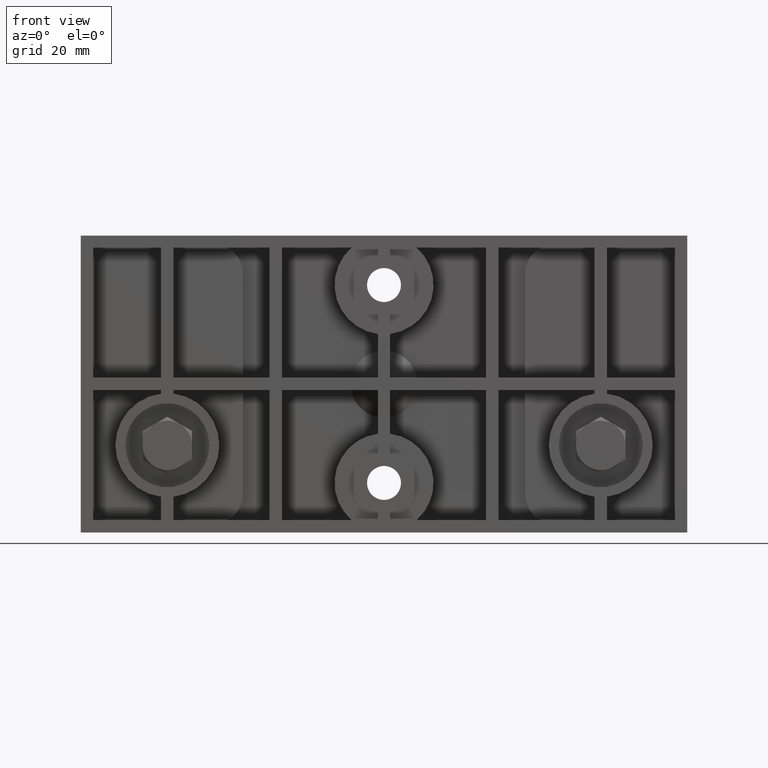
[diagram: clean part render]
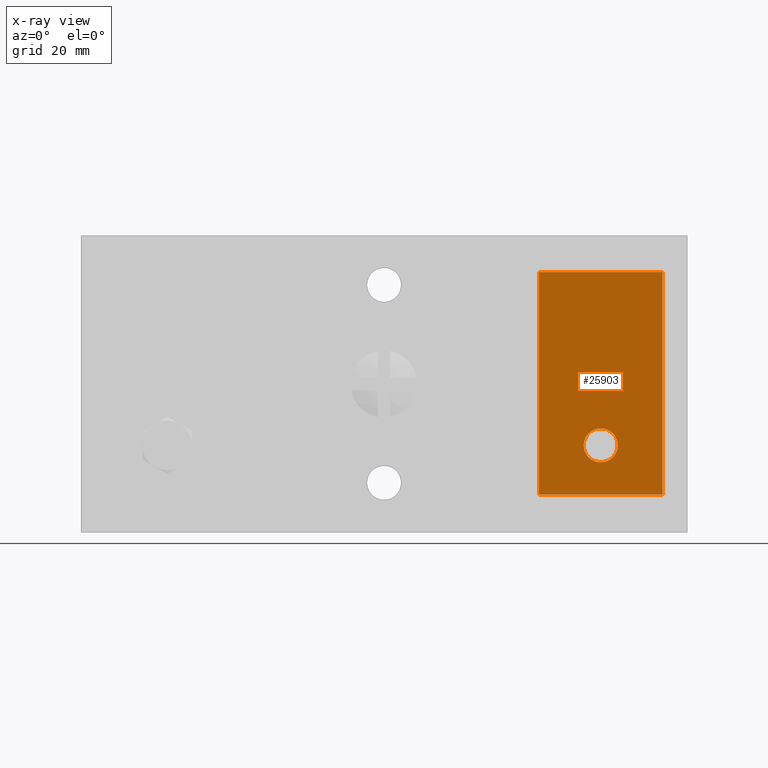
[diagram: x-ray — body ghosted, one internal face saturated and labeled with its STEP entity id]
A machine part, front view, then the same camera in x-ray: the body is ghosted and one INTERNAL B-rep face — a face not visible from any outside direction — is saturated and labeled: STEP entity #25903.
In plain terms, the highlighted planar face has unit normal (-0, 1, 0).
Its self-contained STEP definition (entity closure, byte-faithful):
#1684 = EDGE_CURVE ( 'NONE', #10919, #28744, #18058, .T. ) ;
#1951 = VERTEX_POINT ( 'NONE', #25481 ) ;
#2951 = LINE ( 'NONE', #28451, #9920 ) ;
#3392 = DIRECTION ( 'NONE',  ( -1.000000000000000000, -1.627419350261083900E-017, -2.775557561562890700E-017 ) ) ;
#5458 = EDGE_CURVE ( 'NONE', #28744, #1951, #29578, .T. ) ;
#7291 = VERTEX_POINT ( 'NONE', #28426 ) ;
#7743 = ORIENTED_EDGE ( 'NONE', *, *, #1684, .T. ) ;
#9808 = EDGE_CURVE ( 'NONE', #7291, #7291, #25688, .T. ) ;
#9920 = VECTOR ( 'NONE', #15656, 39.37007874015748100 ) ;
#10143 = ORIENTED_EDGE ( 'NONE', *, *, #30091, .F. ) ;
#10190 = CARTESIAN_POINT ( 'NONE',  ( 2.814999999999997700, 0.6500000000000001300, -1.119999999999987500 ) ) ;
#10919 = VERTEX_POINT ( 'NONE', #26965 ) ;
#12111 = FACE_OUTER_BOUND ( 'NONE', #23804, .T. ) ;
#13020 = CARTESIAN_POINT ( 'NONE',  ( 2.814999999999997700, 0.6499999999999999100, 1.130000000000013000 ) ) ;
#13375 = DIRECTION ( 'NONE',  ( -1.627419350261083900E-017, 1.000000000000000000, 1.126658188791411900E-016 ) ) ;
#14033 = CARTESIAN_POINT ( 'NONE',  ( 2.814999999999997700, 0.6499999999999999100, 1.130000000000013000 ) ) ;
#15656 = DIRECTION ( 'NONE',  ( 2.775557561562890700E-017, 1.126658188791411200E-016, -1.000000000000000000 ) ) ;
#15662 = DIRECTION ( 'NONE',  ( -1.000000000000000000, -1.627419350261083900E-017, -2.775557561562890700E-017 ) ) ;
#16669 = DIRECTION ( 'NONE',  ( 1.000000000000000000, 1.627419350261083900E-017, 2.775557561562890700E-017 ) ) ;
#16962 = ORIENTED_EDGE ( 'NONE', *, *, #31001, .F. ) ;
#18058 = LINE ( 'NONE', #13020, #31063 ) ;
#18979 = FACE_BOUND ( 'NONE', #28663, .T. ) ;
#20713 = ORIENTED_EDGE ( 'NONE', *, *, #9808, .T. ) ;
#20816 = VECTOR ( 'NONE', #3392, 39.37007874015748100 ) ;
#20879 = ORIENTED_EDGE ( 'NONE', *, *, #5458, .T. ) ;
#22658 = VECTOR ( 'NONE', #32862, 39.37007874015748100 ) ;
#22907 = AXIS2_PLACEMENT_3D ( 'NONE', #28915, #13375, #31542 ) ;
#23566 = AXIS2_PLACEMENT_3D ( 'NONE', #14033, #32219, #16669 ) ;
#23804 = EDGE_LOOP ( 'NONE', ( #20879, #10143, #16962, #7743 ) ) ;
#25481 = CARTESIAN_POINT ( 'NONE',  ( 1.564999999999997700, 0.6500000000000001300, -1.119999999999987500 ) ) ;
#25688 = CIRCLE ( 'NONE', #22907, 0.1718749999999999200 ) ;
#25879 = CARTESIAN_POINT ( 'NONE',  ( 1.564999999999997700, 0.6499999999999999100, 1.130000000000013000 ) ) ;
#25903 = ADVANCED_FACE ( 'NONE', ( #18979, #12111 ), #31126, .F. ) ;
#26965 = CARTESIAN_POINT ( 'NONE',  ( 2.814999999999997700, 0.6499999999999999100, 1.130000000000013000 ) ) ;
#28426 = CARTESIAN_POINT ( 'NONE',  ( 2.361874999999997700, 0.6500000000000001300, -0.6199999999999873400 ) ) ;
#28451 = CARTESIAN_POINT ( 'NONE',  ( 2.814999999999997700, 0.6499999999999999100, 1.130000000000013000 ) ) ;
#28569 = LINE ( 'NONE', #31896, #20816 ) ;
#28663 = EDGE_LOOP ( 'NONE', ( #20713 ) ) ;
#28744 = VERTEX_POINT ( 'NONE', #25879 ) ;
#28915 = CARTESIAN_POINT ( 'NONE',  ( 2.189999999999997700, 0.6500000000000001300, -0.6199999999999873400 ) ) ;
#29578 = LINE ( 'NONE', #30220, #22658 ) ;
#30091 = EDGE_CURVE ( 'NONE', #31578, #1951, #28569, .T. ) ;
#30220 = CARTESIAN_POINT ( 'NONE',  ( 1.564999999999997700, 0.6499999999999999100, 1.130000000000013000 ) ) ;
#31001 = EDGE_CURVE ( 'NONE', #10919, #31578, #2951, .T. ) ;
#31063 = VECTOR ( 'NONE', #15662, 39.37007874015748100 ) ;
#31126 = PLANE ( 'NONE',  #23566 ) ;
#31542 = DIRECTION ( 'NONE',  ( 1.000000000000000000, 0.0000000000000000000, 0.0000000000000000000 ) ) ;
#31578 = VERTEX_POINT ( 'NONE', #10190 ) ;
#31896 = CARTESIAN_POINT ( 'NONE',  ( 2.814999999999997700, 0.6500000000000001300, -1.119999999999987500 ) ) ;
#32219 = DIRECTION ( 'NONE',  ( -1.627419350261084200E-017, 1.000000000000000000, 1.126658188791411900E-016 ) ) ;
#32862 = DIRECTION ( 'NONE',  ( 2.775557561562890700E-017, 1.126658188791411200E-016, -1.000000000000000000 ) ) ;